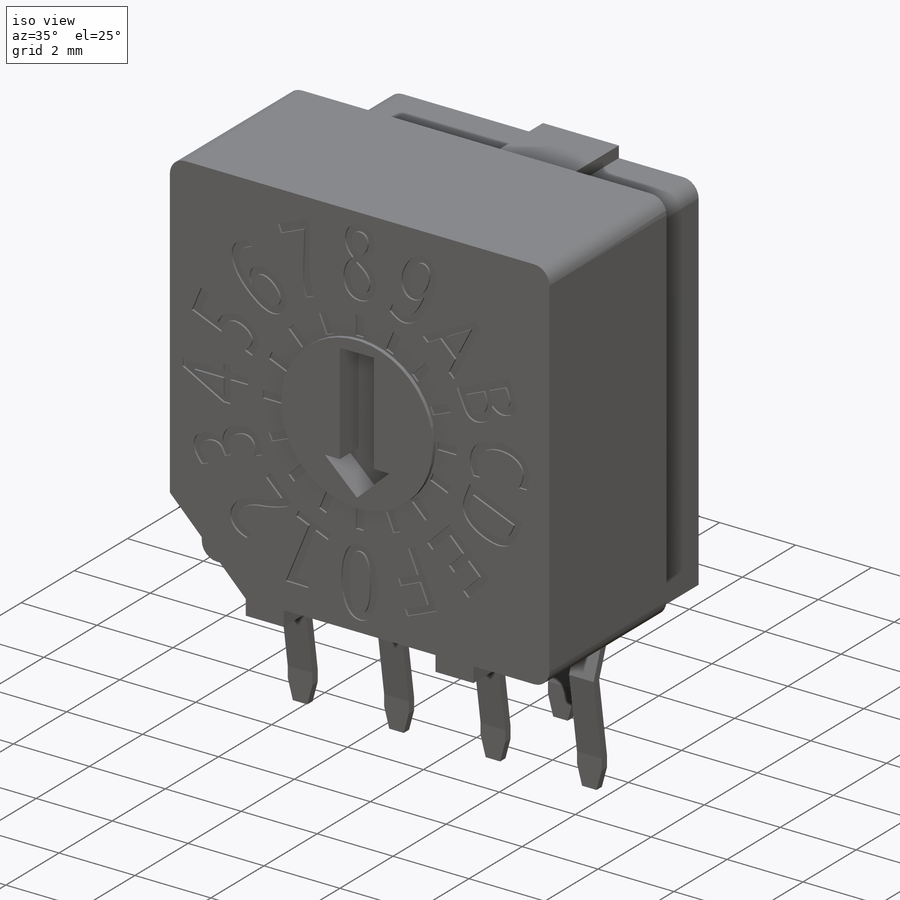
[diagram: iso view]
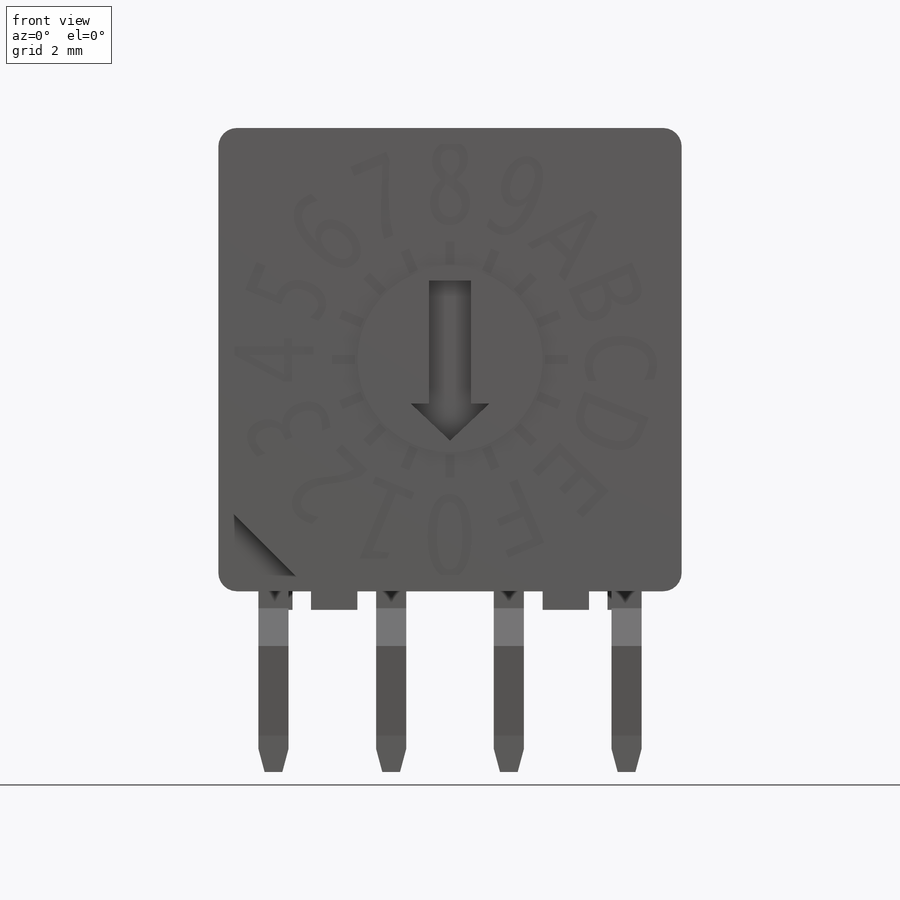
[diagram: front view]
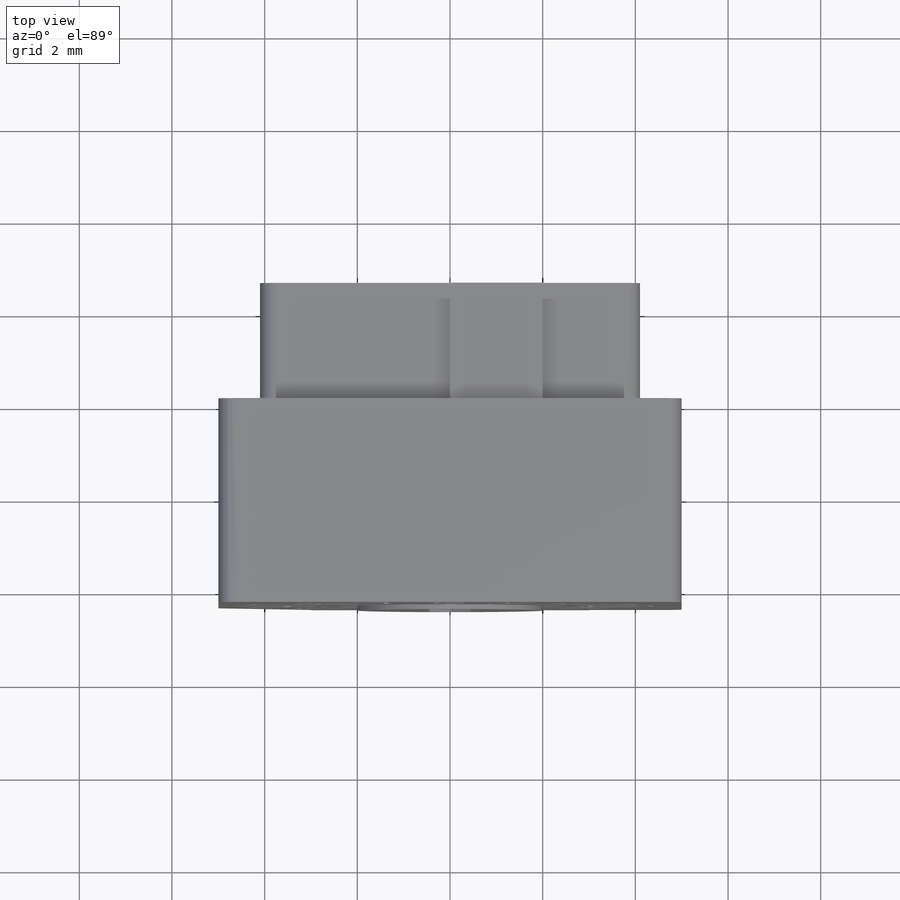
[diagram: top view]
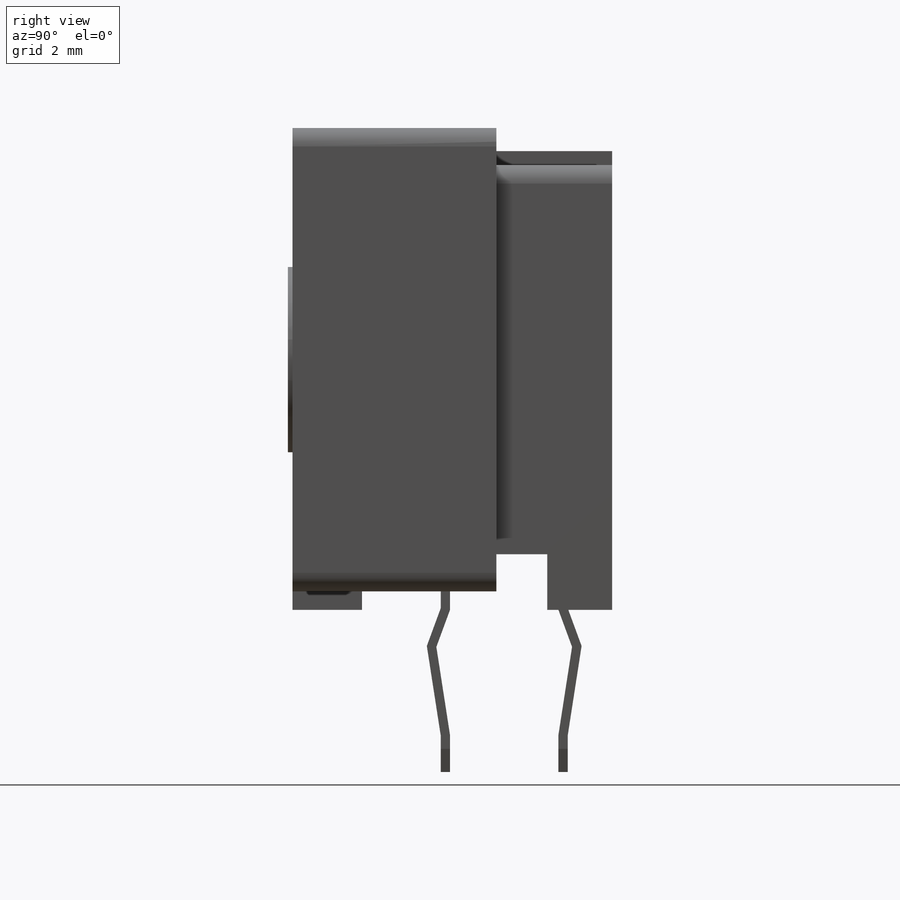
[diagram: right view]
SOLIDWORKS PART (.sldprt)
format: sldprt  version: not decoded by parser v0  size: 928,256 bytes
history: native  units: mm
features: sketch x13, extrude x8, cut_extrude x4, material x1, fillet x1, pattern_linear x1, chamfer x1, plane x1 (+12 scaffold rows collapsed)
feature tree (42):
  scaffold x12  (default folders/planes/origin — collapsed)
  material  "Material <not specified>"
  sketch  "Sketch1"  dims[D3=0.4mm D1=10.0mm D2=10.0mm]
  extrude  "Extrude1"  Depth=4.4mm
  sketch  "Sketch2"  dims[D1=8.2mm D2=8.4mm]
  extrude  "Extrude2"  Depth=2.5mm
  fillet  "Fillet1"  Radius=0.4mm
  sketch  "Sketch3"  dims[D1=0.3mm D2=2.0mm]
  extrude  "Extrude3"  [1 undecoded]
  sketch  "Sketch4"  dims[D1=4.0mm D2=1.0mm D3=1.5mm]
  extrude  "Extrude4"  Depth=0.4mm
  sketch  "Sketch5"  dims[D1=6.8mm D2=1.4mm]
  extrude  "Extrude5"  [1 undecoded]
  sketch  "Sketch6"  dims[D1=0.8mm D2=2.54mm D3=1.1mm]
  cut_extrude  "Cut-Extrude1"  Depth=1.2mm
  sketch  "Sketch7"  dims[D1=2.0mm]
  cut_extrude  "Cut-Extrude2"  Depth=1.2mm
  sketch  "Sketch8"  dims[D1=0.2mm D2=3.3mm D3=0.3mm D4=0.8mm D5=3.5mm D6=1.2mm D7=1.0mm D8=1.27mm]
  extrude  "Extrude6"  Depth=0.325mm
  pattern_linear  "LPattern2"  Count1=3 Count2=2 Spacing1=2.54mm Spacing2=2.54mm
  extrude  "Extrude7"  [1 undecoded]
  sketch  "Sketch8<3>"  dims[D1=0.325mm D2=0.325mm D19=1.27mm]
  chamfer  "Chamfer1"  Distance=0.5mm Angle=15deg
  sketch  "Sketch11"  dims[c1.D4=6.0mm c1.D5=6.0mm c2.D4=3.0mm c2.D1=2.05mm c2.D2=0.2mm c2.D3=0.5mm c2.D5=0.05mm c2.D6=3.0mm c3.D6=~13.280243deg c4.D6=~1.732412mm c5.D6=12.0deg]
  cut_extrude  "Cut-Extrude4"  Depth=0.05mm
  sketch  "Sketch9"  dims[D1=4.0mm]
  extrude  "Extrude8"  Depth=0.1mm
  sketch  "Sketch10"  dims[D1=0.9mm D2=0.8mm D3=0.4mm D4=1.75mm D5=1.7mm]
  cut_extrude  "Cut-Extrude3"  Depth=0.7mm
  plane  "Board Plane"  Offset=6mm
  sketch  "Component_Outline"
decode coverage: 24 of 28 modeling features carry decoded parameters
note: ~ marks probable driven/reference dimensions
note: 3 parameter values undecoded
summary: no parameter record found for 3 features
note: suppression state not decoded; provenance and decode notes live in map.json
